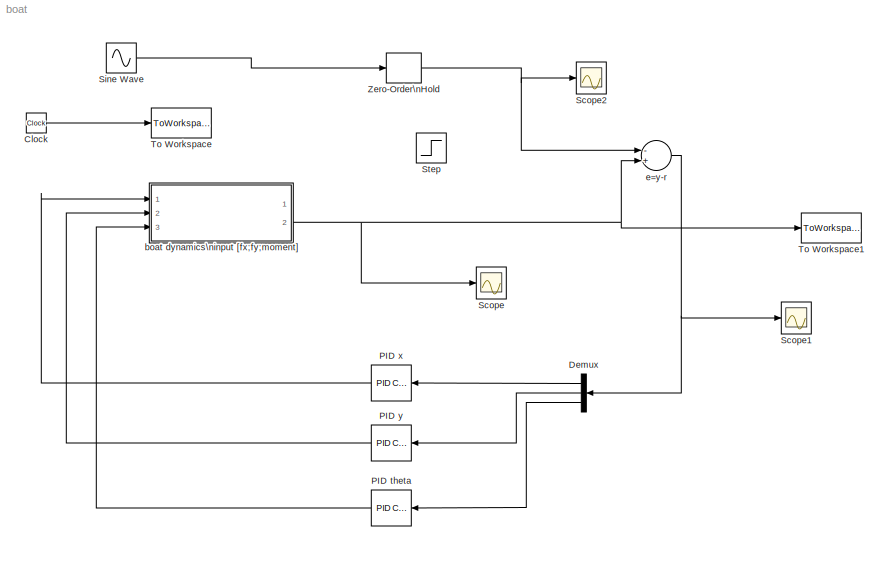
MODEL boat
KIND model
BLOCK [Clock] Clock
  SID = 9
BLOCK [Demux] Demux
  DisplayOption = bar
  Outputs = 3
  Ports = [1, 3]
  SID = 51
BLOCK [Reference] PID theta  REF=simulink/Continuous/PID Controller
  AntiWindupMode = none
  Controller = PID
  D = 5.47077070641916
  DOutDataTypeStr = Inherit: Inherit via internal rule
  DOutMax = []
  DOutMin = []
  DParamDataTypeStr = Inherit: Inherit via internal rule
  DParamMax = []
  DParamMin = []
  ExternalReset = none
  FilterContinuousStateAttributes = ''
  FilterMethod = Forward Euler
  FilterOutDataTypeStr = Inherit: Inherit via internal rule
  FilterOutMax = []
  FilterOutMin = []
  FilterRTWStateStorageClass = Auto
  FilterStateMustResolveToSignalObject = off
  Form = Parallel
  I = -178.448916818041
  IOutDataTypeStr = Inherit: Inherit via internal rule
  IOutMax = []
  IOutMin = []
  IParamDataTypeStr = Inherit: Inherit via internal rule
  IParamMax = []
  IParamMin = []
  IgnoreLimit = off
  InitialConditionForFilter = 0
  InitialConditionForIntegrator = 0
  InitialConditionSource = internal
  IntegratorContinuousStateAttributes = ''
  IntegratorMethod = Forward Euler
  IntegratorOutDataTypeStr = Inherit: Inherit via internal rule
  IntegratorOutMax = []
  IntegratorOutMin = []
  IntegratorRTWStateStorageClass = Auto
  IntegratorStateMustResolveToSignalObject = off
  Kb = 1
  KbOutDataTypeStr = Inherit: Inherit via internal rule
  KbOutMax = []
  KbOutMin = []
  KbParamDataTypeStr = Inherit: Inherit via internal rule
  KbParamMax = []
  KbParamMin = []
  Kt = 1
  KtOutDataTypeStr = Inherit: Inherit via internal rule
  KtOutMax = []
  KtOutMin = []
  KtParamDataTypeStr = Inherit: Inherit via internal rule
  KtParamMax = []
  KtParamMin = []
  LimitOutput = off
  LinearizeAsGain = off
  LockScale = off
  LowerSaturationLimit = -inf
  N = 9.64052643054454
  NOutDataTypeStr = Inherit: Inherit via internal rule
  NOutMax = []
  NOutMin = []
  NParamDataTypeStr = Inherit: Inherit via internal rule
  NParamMax = []
  NParamMin = []
  P = -52.7411095906827
  POutDataTypeStr = Inherit: Inherit via internal rule
  POutMax = []
  POutMin = []
  PParamDataTypeStr = Inherit: Inherit via internal rule
  PParamMax = []
  PParamMin = []
  Ports = [1, 1]
  RndMeth = Floor
  SID = 53
  SampleTime = 1
  SaturateOnIntegerOverflow = off
  SaturationOutDataTypeStr = Inherit: Same as input
  SaturationOutMax = []
  SaturationOutMin = []
  SourceBlock = simulink/Continuous/PID Controller
  SourceType = PID 1dof
  SumAccumDataTypeStr = Inherit: Inherit via internal rule
  SumDAccumDataTypeStr = Inherit: Inherit via internal rule
  SumDOutDataTypeStr = Inherit: Inherit via internal rule
  SumDOutMax = []
  SumDOutMin = []
  SumI1AccumDataTypeStr = Inherit: Inherit via internal rule
  SumI1OutDataTypeStr = Inherit: Inherit via internal rule
  SumI1OutMax = []
  SumI1OutMin = []
  SumI2AccumDataTypeStr = Inherit: Inherit via internal rule
  SumI2OutDataTypeStr = Inherit: Inherit via internal rule
  SumI2OutMax = []
  SumI2OutMin = []
  SumI3AccumDataTypeStr = Inherit: Inherit via internal rule
  SumI3OutDataTypeStr = Inherit: Inherit via internal rule
  SumI3OutMax = []
  SumI3OutMin = []
  SumOutDataTypeStr = Inherit: Inherit via internal rule
  SumOutMax = []
  SumOutMin = []
  TimeDomain = Continuous-time
  TrackingMode = off
  UpperSaturationLimit = inf
  ZeroCross = on
BLOCK [Reference] PID x  REF=simulink/Continuous/PID Controller
  AntiWindupMode = none
  Controller = PID
  D = 2.73538535320958
  DOutDataTypeStr = Inherit: Inherit via internal rule
  DOutMax = []
  DOutMin = []
  DParamDataTypeStr = Inherit: Inherit via internal rule
  DParamMax = []
  DParamMin = []
  ExternalReset = none
  FilterContinuousStateAttributes = ''
  FilterMethod = Forward Euler
  FilterOutDataTypeStr = Inherit: Inherit via internal rule
  FilterOutMax = []
  FilterOutMin = []
  FilterRTWStateStorageClass = Auto
  FilterStateMustResolveToSignalObject = off
  Form = Parallel
  I = -356.897833636081
  IOutDataTypeStr = Inherit: Inherit via internal rule
  IOutMax = []
  IOutMin = []
  IParamDataTypeStr = Inherit: Inherit via internal rule
  IParamMax = []
  IParamMin = []
  IgnoreLimit = off
  InitialConditionForFilter = 0
  InitialConditionForIntegrator = 0
  InitialConditionSource = internal
  IntegratorContinuousStateAttributes = ''
  IntegratorMethod = Forward Euler
  IntegratorOutDataTypeStr = Inherit: Inherit via internal rule
  IntegratorOutMax = []
  IntegratorOutMin = []
  IntegratorRTWStateStorageClass = Auto
  IntegratorStateMustResolveToSignalObject = off
  Kb = 1
  KbOutDataTypeStr = Inherit: Inherit via internal rule
  KbOutMax = []
  KbOutMin = []
  KbParamDataTypeStr = Inherit: Inherit via internal rule
  KbParamMax = []
  KbParamMin = []
  Kt = 1
  KtOutDataTypeStr = Inherit: Inherit via internal rule
  KtOutMax = []
  KtOutMin = []
  KtParamDataTypeStr = Inherit: Inherit via internal rule
  KtParamMax = []
  KtParamMin = []
  LimitOutput = off
  LinearizeAsGain = off
  LockScale = off
  LowerSaturationLimit = -inf
  N = 19.2810528610891
  NOutDataTypeStr = Inherit: Inherit via internal rule
  NOutMax = []
  NOutMin = []
  NParamDataTypeStr = Inherit: Inherit via internal rule
  NParamMax = []
  NParamMin = []
  P = -52.7411095906827
  POutDataTypeStr = Inherit: Inherit via internal rule
  POutMax = []
  POutMin = []
  PParamDataTypeStr = Inherit: Inherit via internal rule
  PParamMax = []
  PParamMin = []
  Ports = [1, 1]
  RndMeth = Floor
  SID = 49
  SampleTime = 1
  SaturateOnIntegerOverflow = off
  SaturationOutDataTypeStr = Inherit: Same as input
  SaturationOutMax = []
  SaturationOutMin = []
  SourceBlock = simulink/Continuous/PID Controller
  SourceType = PID 1dof
  SumAccumDataTypeStr = Inherit: Inherit via internal rule
  SumDAccumDataTypeStr = Inherit: Inherit via internal rule
  SumDOutDataTypeStr = Inherit: Inherit via internal rule
  SumDOutMax = []
  SumDOutMin = []
  SumI1AccumDataTypeStr = Inherit: Inherit via internal rule
  SumI1OutDataTypeStr = Inherit: Inherit via internal rule
  SumI1OutMax = []
  SumI1OutMin = []
  SumI2AccumDataTypeStr = Inherit: Inherit via internal rule
  SumI2OutDataTypeStr = Inherit: Inherit via internal rule
  SumI2OutMax = []
  SumI2OutMin = []
  SumI3AccumDataTypeStr = Inherit: Inherit via internal rule
  SumI3OutDataTypeStr = Inherit: Inherit via internal rule
  SumI3OutMax = []
  SumI3OutMin = []
  SumOutDataTypeStr = Inherit: Inherit via internal rule
  SumOutMax = []
  SumOutMin = []
  TimeDomain = Continuous-time
  TrackingMode = off
  UpperSaturationLimit = inf
  ZeroCross = on
BLOCK [Reference] PID y  REF=simulink/Continuous/PID Controller
  AntiWindupMode = none
  Controller = PID
  D = 2.73538535320958
  DOutDataTypeStr = Inherit: Inherit via internal rule
  DOutMax = []
  DOutMin = []
  DParamDataTypeStr = Inherit: Inherit via internal rule
  DParamMax = []
  DParamMin = []
  ExternalReset = none
  FilterContinuousStateAttributes = ''
  FilterMethod = Forward Euler
  FilterOutDataTypeStr = Inherit: Inherit via internal rule
  FilterOutMax = []
  FilterOutMin = []
  FilterRTWStateStorageClass = Auto
  FilterStateMustResolveToSignalObject = off
  Form = Parallel
  I = -356.897833636081
  IOutDataTypeStr = Inherit: Inherit via internal rule
  IOutMax = []
  IOutMin = []
  IParamDataTypeStr = Inherit: Inherit via internal rule
  IParamMax = []
  IParamMin = []
  IgnoreLimit = off
  InitialConditionForFilter = 0
  InitialConditionForIntegrator = 0
  InitialConditionSource = internal
  IntegratorContinuousStateAttributes = ''
  IntegratorMethod = Forward Euler
  IntegratorOutDataTypeStr = Inherit: Inherit via internal rule
  IntegratorOutMax = []
  IntegratorOutMin = []
  IntegratorRTWStateStorageClass = Auto
  IntegratorStateMustResolveToSignalObject = off
  Kb = 1
  KbOutDataTypeStr = Inherit: Inherit via internal rule
  KbOutMax = []
  KbOutMin = []
  KbParamDataTypeStr = Inherit: Inherit via internal rule
  KbParamMax = []
  KbParamMin = []
  Kt = 1
  KtOutDataTypeStr = Inherit: Inherit via internal rule
  KtOutMax = []
  KtOutMin = []
  KtParamDataTypeStr = Inherit: Inherit via internal rule
  KtParamMax = []
  KtParamMin = []
  LimitOutput = off
  LinearizeAsGain = off
  LockScale = off
  LowerSaturationLimit = -inf
  N = 19.2810528610891
  NOutDataTypeStr = Inherit: Inherit via internal rule
  NOutMax = []
  NOutMin = []
  NParamDataTypeStr = Inherit: Inherit via internal rule
  NParamMax = []
  NParamMin = []
  P = -52.7411095906827
  POutDataTypeStr = Inherit: Inherit via internal rule
  POutMax = []
  POutMin = []
  PParamDataTypeStr = Inherit: Inherit via internal rule
  PParamMax = []
  PParamMin = []
  Ports = [1, 1]
  RndMeth = Floor
  SID = 52
  SampleTime = 1
  SaturateOnIntegerOverflow = off
  SaturationOutDataTypeStr = Inherit: Same as input
  SaturationOutMax = []
  SaturationOutMin = []
  SourceBlock = simulink/Continuous/PID Controller
  SourceType = PID 1dof
  SumAccumDataTypeStr = Inherit: Inherit via internal rule
  SumDAccumDataTypeStr = Inherit: Inherit via internal rule
  SumDOutDataTypeStr = Inherit: Inherit via internal rule
  SumDOutMax = []
  SumDOutMin = []
  SumI1AccumDataTypeStr = Inherit: Inherit via internal rule
  SumI1OutDataTypeStr = Inherit: Inherit via internal rule
  SumI1OutMax = []
  SumI1OutMin = []
  SumI2AccumDataTypeStr = Inherit: Inherit via internal rule
  SumI2OutDataTypeStr = Inherit: Inherit via internal rule
  SumI2OutMax = []
  SumI2OutMin = []
  SumI3AccumDataTypeStr = Inherit: Inherit via internal rule
  SumI3OutDataTypeStr = Inherit: Inherit via internal rule
  SumI3OutMax = []
  SumI3OutMin = []
  SumOutDataTypeStr = Inherit: Inherit via internal rule
  SumOutMax = []
  SumOutMin = []
  TimeDomain = Continuous-time
  TrackingMode = off
  UpperSaturationLimit = inf
  ZeroCross = on
BLOCK [Scope] Scope
  DataFormat = StructureWithTime
  Floating = off
  NumInputPorts = 1
  Ports = [1]
  SID = 46
  SampleTime = 0
  SaveName = ScopeData1
  ShowLegends = off
  ZoomMode = yonly
BLOCK [Scope] Scope1
  DataFormat = StructureWithTime
  Floating = off
  NumInputPorts = 1
  Ports = [1]
  SID = 61
  SampleTime = 0
  SaveName = ScopeData2
  ShowLegends = off
  ZoomMode = yonly
BLOCK [Scope] Scope2
  DataFormat = StructureWithTime
  Floating = off
  NumInputPorts = 1
  Ports = [1]
  SID = 62
  SampleTime = 0
  SaveName = ScopeData3
  ShowLegends = off
  ZoomMode = yonly
BLOCK [Sin] Sine Wave
  Amplitude = [2;4;700]
  Frequency = [2;4;.1]
  Ports = [0, 1]
  SID = 65
  SampleTime = 0
BLOCK [Step] Step
  After = [5;2;45]
  Before = [0;0;0]
  SID = 48
  SampleTime = 0
BLOCK [ToWorkspace] To Workspace
  MaxDataPoints = inf
  Ports = [1]
  SID = 56
  SampleTime = -1
  SaveFormat = Structure
  VariableName = time
BLOCK [ToWorkspace] To Workspace1
  MaxDataPoints = inf
  Ports = [1]
  SID = 57
  SampleTime = -1
  SaveFormat = Structure
  VariableName = Output
BLOCK [ZeroOrderHold] Zero-Order\nHold
  SID = 63
  SampleTime = 3
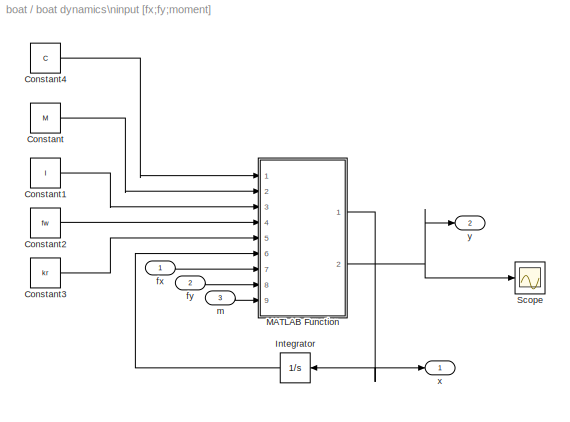
BLOCK [SubSystem] boat dynamics\ninput [fx;fy;moment]
  FunctionWithSeparateData = off
  MaskCallbackString = ||||
  MaskEnableString = on,on,on,on,on
  MaskHideContents = off
  MaskIconFrame = on
  MaskIconOpaque = on
  MaskIconRotate = none
  MaskIconUnits = autoscale
  MaskPortRotate = default
  MaskPromptString = Mass|Inert|Water Friction|Rotational water Friction|Output Matrix
  MaskStyleString = edit,edit,edit,edit,edit
  MaskToolTipString = on,on,on,on,on
  MaskTunableValueString = on,on,on,on,on
  MaskValueString = M|I|fw|kr|C
  MaskVariables = M=@1;I=@2;fw=@3;kr=@4;C=@5;
  MaskVisibilityString = on,on,on,on,on
  MinAlgLoopOccurrences = off
  Opaque = off
  Ports = [3, 2]
  PropExecContextOutsideSubsystem = off
  RTWSystemCode = Auto
  RequestExecContextInheritance = off
  SID = 5
BLOCK [Constant] boat dynamics\ninput [fx;fy;moment]/Constant
  SID = 15
  Value = M
BLOCK [Constant] boat dynamics\ninput [fx;fy;moment]/Constant1
  SID = 17
  Value = I
BLOCK [Constant] boat dynamics\ninput [fx;fy;moment]/Constant2
  SID = 18
  Value = fw
BLOCK [Constant] boat dynamics\ninput [fx;fy;moment]/Constant3
  SID = 19
  Value = kr
BLOCK [Constant] boat dynamics\ninput [fx;fy;moment]/Constant4
  SID = 41
  Value = C
BLOCK [Integrator] boat dynamics\ninput [fx;fy;moment]/Integrator
  InitialCondition = [0 0 0 0 0 0]
  Ports = [1, 1]
  SID = 60
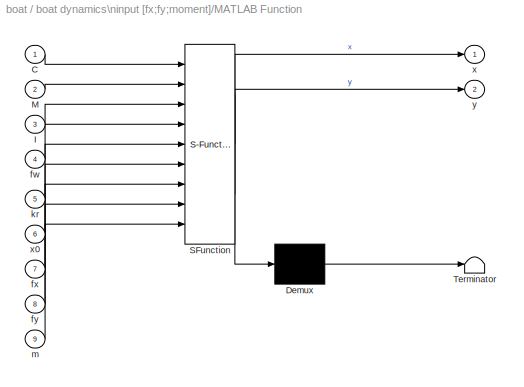
BLOCK [SubSystem] boat dynamics\ninput [fx;fy;moment]/MATLAB Function
  ErrorFcn = Stateflow.Translate.translate
  FunctionWithSeparateData = off
  MaskDescription = Embedded MATLAB block
  MaskDisplay = bgColor = Simulink.Root.ColorString2Rgb(get_param(gcbh, 'BackgroundColor')); image(imread('private/eml_membrane_16.png','png','BackgroundColor',bgColor(1:3)),'center'); disp([10 10 'systemstep']);
  MaskHideContents = off
  MaskIconFrame = on
  MaskIconOpaque = off
  MaskIconRotate = none
  MaskIconUnits = normalized
  MaskPortRotate = default
  MaskSelfModifiable = on
  MaskType = Stateflow
  MinAlgLoopOccurrences = off
  Opaque = off
  PermitHierarchicalResolution = ExplicitOnly
  Ports = [9, 2]
  PropExecContextOutsideSubsystem = off
  RTWSystemCode = Auto
  RequestExecContextInheritance = off
  SFBlockType = MATLAB Function
  SID = 1
  TreatAsAtomicUnit = on
BLOCK [Demux] boat dynamics\ninput [fx;fy;moment]/MATLAB Function/ Demux 
  Outputs = 1
  Ports = [1, 1]
  SID = 1::28
BLOCK [S-Function] boat dynamics\ninput [fx;fy;moment]/MATLAB Function/ SFunction 
  EnableBusSupport = on
  FunctionName = sf_sfun
  PortCounts = [9 3]
  Ports = [9, 3]
  SID = 1::27
  Tag = Stateflow S-Function boat 2
BLOCK [Terminator] boat dynamics\ninput [fx;fy;moment]/MATLAB Function/ Terminator 
  SID = 1::30
BLOCK [Inport] boat dynamics\ninput [fx;fy;moment]/MATLAB Function/C
  IconDisplay = Port number
  SID = 1::24
BLOCK [Inport] boat dynamics\ninput [fx;fy;moment]/MATLAB Function/I
  IconDisplay = Port number
  Port = 3
  SID = 1::20
BLOCK [Inport] boat dynamics\ninput [fx;fy;moment]/MATLAB Function/M
  IconDisplay = Port number
  Port = 2
  SID = 1::19
BLOCK [Inport] boat dynamics\ninput [fx;fy;moment]/MATLAB Function/fw
  IconDisplay = Port number
  Port = 4
  SID = 1::21
BLOCK [Inport] boat dynamics\ninput [fx;fy;moment]/MATLAB Function/fx
  IconDisplay = Port number
  Port = 7
  SID = 1::1
BLOCK [Inport] boat dynamics\ninput [fx;fy;moment]/MATLAB Function/fy
  IconDisplay = Port number
  Port = 8
  SID = 1::25
BLOCK [Inport] boat dynamics\ninput [fx;fy;moment]/MATLAB Function/kr
  IconDisplay = Port number
  Port = 5
  SID = 1::22
BLOCK [Inport] boat dynamics\ninput [fx;fy;moment]/MATLAB Function/m
  IconDisplay = Port number
  Port = 9
  SID = 1::26
BLOCK [Outport] boat dynamics\ninput [fx;fy;moment]/MATLAB Function/x
  IconDisplay = Port number
  SID = 1::23
BLOCK [Inport] boat dynamics\ninput [fx;fy;moment]/MATLAB Function/x0
  IconDisplay = Port number
  Port = 6
  SID = 1::18
BLOCK [Outport] boat dynamics\ninput [fx;fy;moment]/MATLAB Function/y
  IconDisplay = Port number
  Port = 2
  SID = 1::5
BLOCK [Scope] boat dynamics\ninput [fx;fy;moment]/Scope
  DataFormat = StructureWithTime
  Floating = off
  NumInputPorts = 1
  Ports = [1]
  SID = 3
  SampleTime = 0
  ShowLegends = off
BLOCK [Inport] boat dynamics\ninput [fx;fy;moment]/fx
  IconDisplay = Port number
  SID = 6
BLOCK [Inport] boat dynamics\ninput [fx;fy;moment]/fy
  IconDisplay = Port number
  Port = 2
  SID = 54
BLOCK [Inport] boat dynamics\ninput [fx;fy;moment]/m
  IconDisplay = Port number
  Port = 3
  SID = 55
BLOCK [Outport] boat dynamics\ninput [fx;fy;moment]/x
  IconDisplay = Port number
  SID = 8
BLOCK [Outport] boat dynamics\ninput [fx;fy;moment]/y
  IconDisplay = Port number
  Port = 2
  SID = 42
BLOCK [Sum] e=y-r
  InputSameDT = off
  Inputs = -+
  OutDataTypeStr = Inherit: Inherit via internal rule
  Ports = [2, 1]
  SID = 11
  SaturateOnIntegerOverflow = off
LINE Clock:1 -> To Workspace:1
LINE Demux:1 -> PID x:1
LINE Demux:2 -> PID y:1
LINE Demux:3 -> PID theta:1
LINE PID theta:1 -> boat dynamics\ninput [fx;fy;moment]:3
LINE PID x:1 -> boat dynamics\ninput [fx;fy;moment]:1
LINE PID y:1 -> boat dynamics\ninput [fx;fy;moment]:2
LINE Sine Wave:1 -> Zero-Order\nHold:1
NET Zero-Order\nHold:1 -> Scope2:1, e=y-r:1
LINE boat dynamics\ninput [fx;fy;moment]/Constant1:1 -> boat dynamics\ninput [fx;fy;moment]/MATLAB Function:3
LINE boat dynamics\ninput [fx;fy;moment]/Constant2:1 -> boat dynamics\ninput [fx;fy;moment]/MATLAB Function:4
LINE boat dynamics\ninput [fx;fy;moment]/Constant3:1 -> boat dynamics\ninput [fx;fy;moment]/MATLAB Function:5
LINE boat dynamics\ninput [fx;fy;moment]/Constant4:1 -> boat dynamics\ninput [fx;fy;moment]/MATLAB Function:1
LINE boat dynamics\ninput [fx;fy;moment]/Constant:1 -> boat dynamics\ninput [fx;fy;moment]/MATLAB Function:2
LINE boat dynamics\ninput [fx;fy;moment]/Integrator:1 -> boat dynamics\ninput [fx;fy;moment]/MATLAB Function:6
LINE boat dynamics\ninput [fx;fy;moment]/MATLAB Function/ Demux :1 -> boat dynamics\ninput [fx;fy;moment]/MATLAB Function/ Terminator :1
LINE boat dynamics\ninput [fx;fy;moment]/MATLAB Function/ SFunction :1 -> boat dynamics\ninput [fx;fy;moment]/MATLAB Function/ Demux :1
LINE boat dynamics\ninput [fx;fy;moment]/MATLAB Function/ SFunction :2 -> boat dynamics\ninput [fx;fy;moment]/MATLAB Function/x:1
LINE boat dynamics\ninput [fx;fy;moment]/MATLAB Function/ SFunction :3 -> boat dynamics\ninput [fx;fy;moment]/MATLAB Function/y:1
LINE boat dynamics\ninput [fx;fy;moment]/MATLAB Function/C:1 -> boat dynamics\ninput [fx;fy;moment]/MATLAB Function/ SFunction :1
LINE boat dynamics\ninput [fx;fy;moment]/MATLAB Function/I:1 -> boat dynamics\ninput [fx;fy;moment]/MATLAB Function/ SFunction :3
LINE boat dynamics\ninput [fx;fy;moment]/MATLAB Function/M:1 -> boat dynamics\ninput [fx;fy;moment]/MATLAB Function/ SFunction :2
LINE boat dynamics\ninput [fx;fy;moment]/MATLAB Function/fw:1 -> boat dynamics\ninput [fx;fy;moment]/MATLAB Function/ SFunction :4
LINE boat dynamics\ninput [fx;fy;moment]/MATLAB Function/fx:1 -> boat dynamics\ninput [fx;fy;moment]/MATLAB Function/ SFunction :7
LINE boat dynamics\ninput [fx;fy;moment]/MATLAB Function/fy:1 -> boat dynamics\ninput [fx;fy;moment]/MATLAB Function/ SFunction :8
LINE boat dynamics\ninput [fx;fy;moment]/MATLAB Function/kr:1 -> boat dynamics\ninput [fx;fy;moment]/MATLAB Function/ SFunction :5
LINE boat dynamics\ninput [fx;fy;moment]/MATLAB Function/m:1 -> boat dynamics\ninput [fx;fy;moment]/MATLAB Function/ SFunction :9
LINE boat dynamics\ninput [fx;fy;moment]/MATLAB Function/x0:1 -> boat dynamics\ninput [fx;fy;moment]/MATLAB Function/ SFunction :6
NET boat dynamics\ninput [fx;fy;moment]/MATLAB Function:1 -> boat dynamics\ninput [fx;fy;moment]/Integrator:1, boat dynamics\ninput [fx;fy;moment]/x:1
NET boat dynamics\ninput [fx;fy;moment]/MATLAB Function:2 -> boat dynamics\ninput [fx;fy;moment]/Scope:1, boat dynamics\ninput [fx;fy;moment]/y:1
LINE boat dynamics\ninput [fx;fy;moment]/fx:1 -> boat dynamics\ninput [fx;fy;moment]/MATLAB Function:7
LINE boat dynamics\ninput [fx;fy;moment]/fy:1 -> boat dynamics\ninput [fx;fy;moment]/MATLAB Function:8
LINE boat dynamics\ninput [fx;fy;moment]/m:1 -> boat dynamics\ninput [fx;fy;moment]/MATLAB Function:9
NET boat dynamics\ninput [fx;fy;moment]:2 -> Scope:1, To Workspace1:1, e=y-r:2
NET e=y-r:1 -> Demux:1, Scope1:1
note: NET lines group one-source signal fan-out (src -> all destinations, sorted); 1:1 wires keep LINE
CHART boat dynamics\ninput [fx;fy;moment]/MATLAB Function states=1 transitions=1
  STATE_LABEL 'eML_blk_kernel()'
